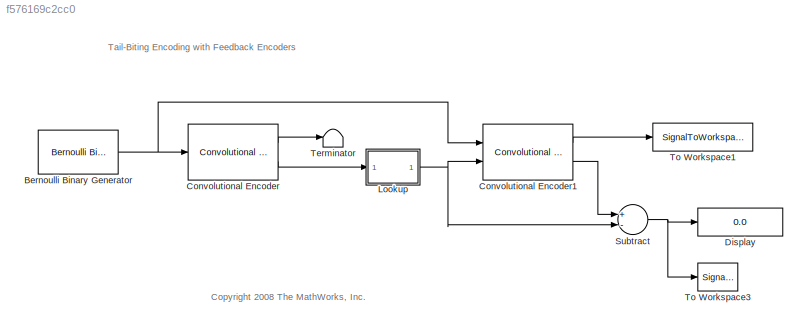
MODEL slx_f576169c2cc0
KIND model
CONFIG PreLoadFcn = blkLen = 10;\ntrellis = poly2trellis(3,[7 5],7);\nmapStValues = [0 2 3 1];
BLOCK [Reference] Bernoulli Binary Generator  REF=commrandsrc2/Bernoulli Binary
Generator
  P = 0.5
  Ports = [0, 1]
  SourceBlock = commrandsrc2/Bernoulli Binary\nGenerator
  SourceType = Bernoulli Binary Generator
  Ts = 0.1
  frameBased = on
  orient = off
  outDataType = boolean
  sampPerFrame = blkLen
  seed = 61
BLOCK [Reference] Convolutional Encoder  REF=commcnvcod2/Convolutional
Encoder
  DelayedResetAction = off
  Ports = [1, 2]
  SourceBlock = commcnvcod2/Convolutional\nEncoder
  SourceType = Convolutional Encoder
  hasFinStPort = on
  hasIniStPort = off
  opMode = Truncated (reset every frame)
  punctureVector = [1; 1; 0; 1; 0; 1]
  reset = Unused parameter value
  trellis = trellis
  usePuncVector = off
BLOCK [Reference] Convolutional Encoder1  REF=commcnvcod2/Convolutional
Encoder
  DelayedResetAction = off
  Ports = [2, 2]
  SourceBlock = commcnvcod2/Convolutional\nEncoder
  SourceType = Convolutional Encoder
  hasFinStPort = on
  hasIniStPort = on
  opMode = Truncated (reset every frame)
  punctureVector = [1; 1; 0; 1; 0; 1]
  reset = Unused parameter value
  trellis = trellis
  usePuncVector = off
BLOCK [Display] Display
  Decimation = 1
  Ports = [1]
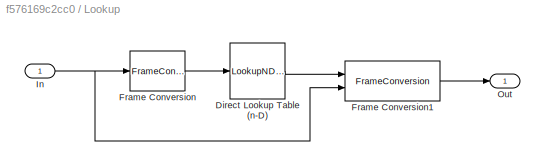
BLOCK [SubSystem] Lookup
  Ports = [1, 1]
  RequestExecContextInheritance = off
  TreatAsAtomicUnit = on
BLOCK [LookupNDDirect] Lookup/Direct Lookup Table (n-D)
  DiagnosticForOutOfRangeInput = Error
  NumberOfTableDimensions = 1
  Ports = [1, 1]
  Table = mapStValues
BLOCK [FrameConversion] Lookup/Frame Conversion
  OutFrame = Sample-based
  Ports = [1, 1]
BLOCK [FrameConversion] Lookup/Frame Conversion1
  InheritSamplingMode = on
  OutFrame = Sample-based
  Ports = [2, 1]
BLOCK [Inport] Lookup/In
  IconDisplay = Port number
BLOCK [Outport] Lookup/Out
  IconDisplay = Port number
BLOCK [Sum] Subtract
  InputSameDT = off
  Inputs = +-
  OutDataTypeStr = Inherit: Inherit via internal rule
  Ports = [2, 1]
  SaturateOnIntegerOverflow = off
BLOCK [Terminator] Terminator
BLOCK [SignalToWorkspace] To Workspace1
  MaxDataPoints = inf
  Ports = [1]
  VariableName = encoded_out
BLOCK [SignalToWorkspace] To Workspace3
  MaxDataPoints = inf
  Ports = [1]
  VariableName = out
ANNOTATION (root): <copyright redacted>
ANNOTATION (root): Tail-Biting Encoding with Feedback Encoders
NET Bernoulli Binary Generator:1 -> Convolutional Encoder1:1, Convolutional Encoder:1
LINE Convolutional Encoder1:1 -> To Workspace1:1
LINE Convolutional Encoder1:2 -> Subtract:1
LINE Convolutional Encoder:1 -> Terminator:1
LINE Convolutional Encoder:2 -> Lookup:1
LINE Lookup/Direct Lookup Table (n-D):1 -> Lookup/Frame Conversion1:1
LINE Lookup/Frame Conversion1:1 -> Lookup/Out:1
LINE Lookup/Frame Conversion:1 -> Lookup/Direct Lookup Table (n-D):1
NET Lookup/In:1 -> Lookup/Frame Conversion1:2, Lookup/Frame Conversion:1
NET Lookup:1 -> Convolutional Encoder1:2, Subtract:2
NET Subtract:1 -> Display:1, To Workspace3:1
note: NET lines group one-source signal fan-out (src -> all destinations, sorted); 1:1 wires keep LINE
